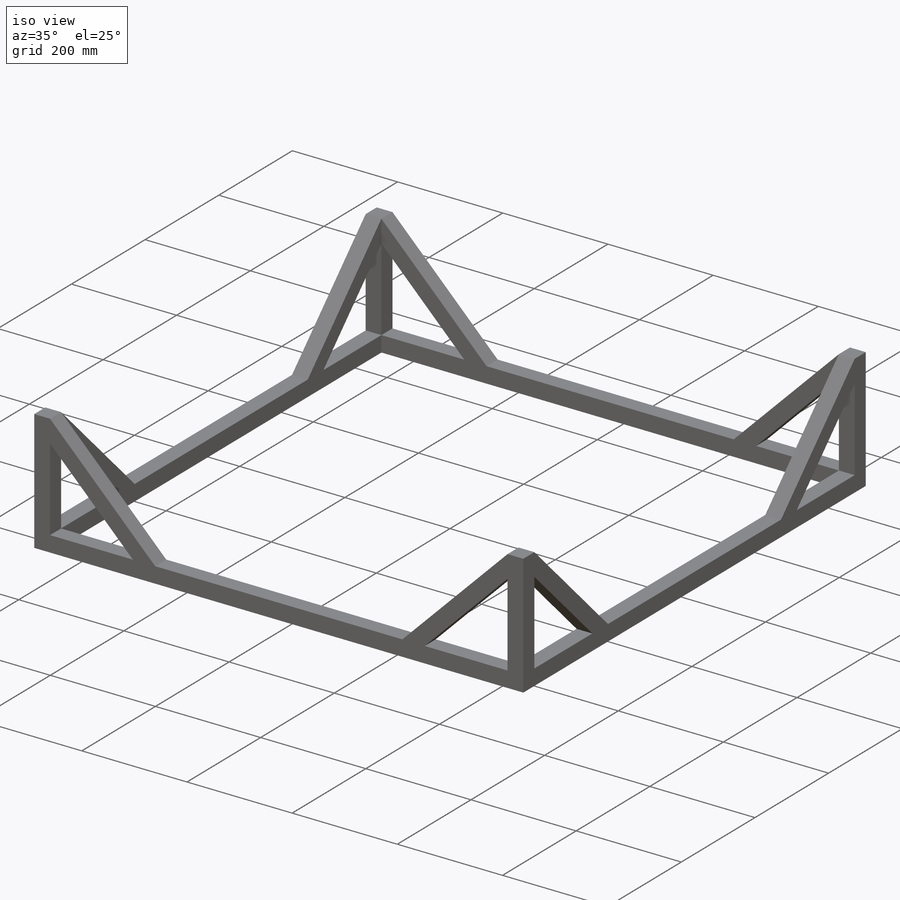
[diagram: iso view]
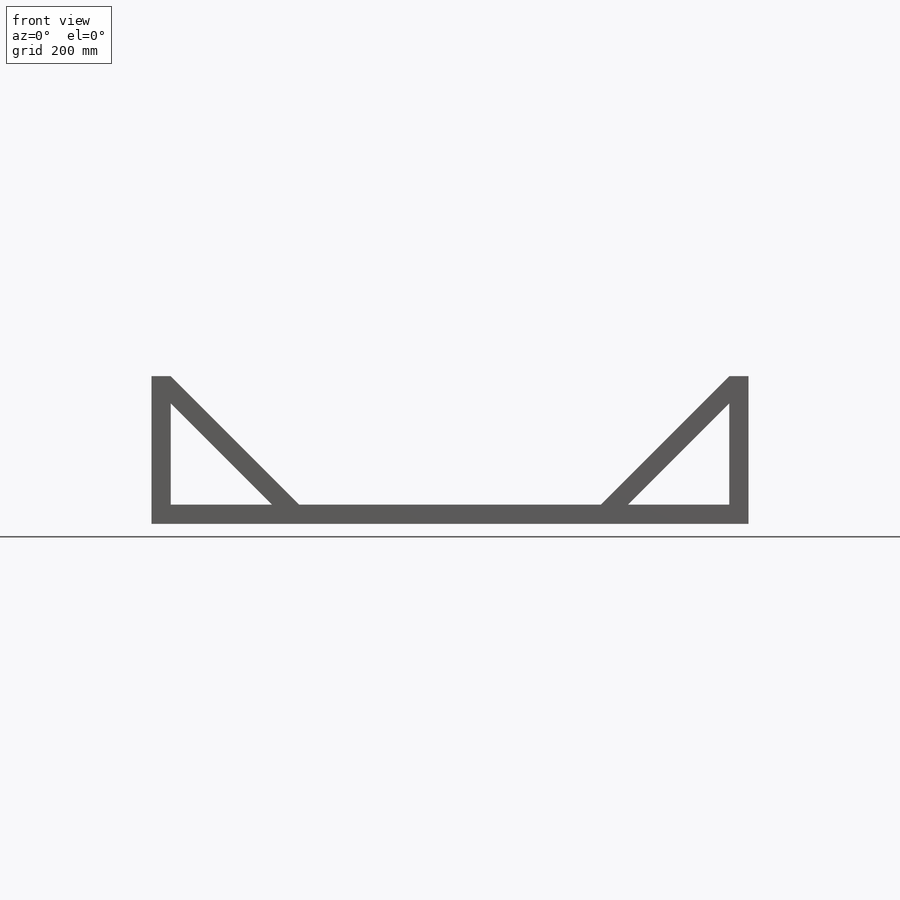
[diagram: front view]
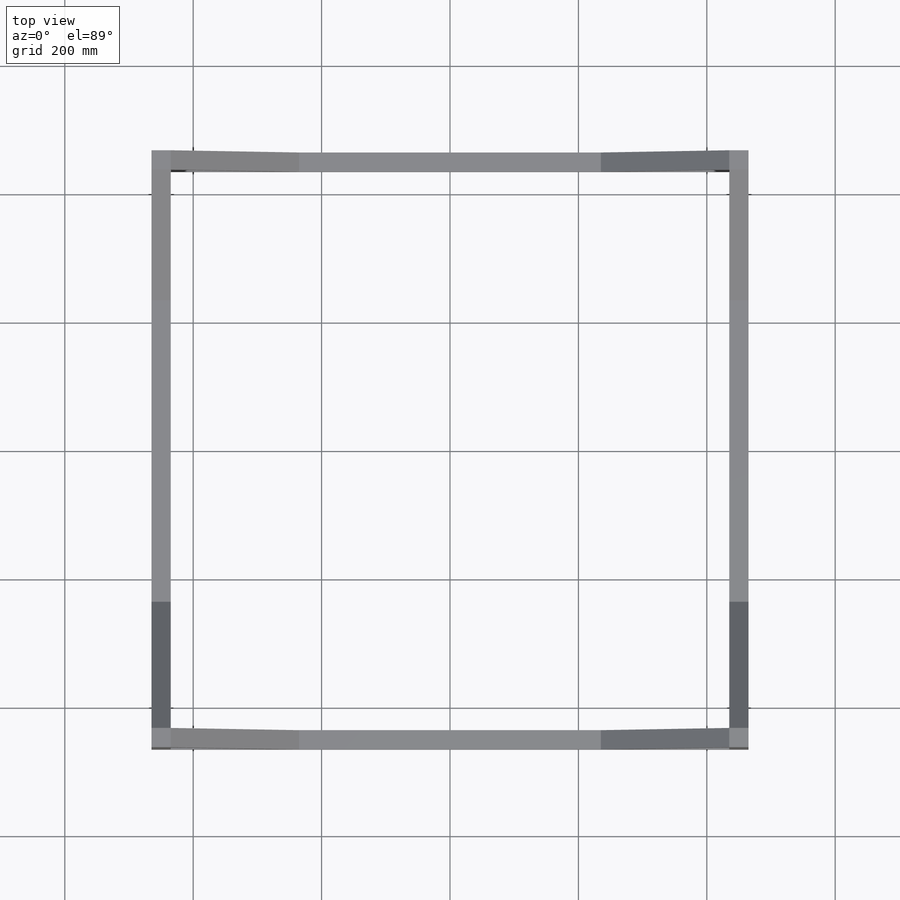
[diagram: top view]
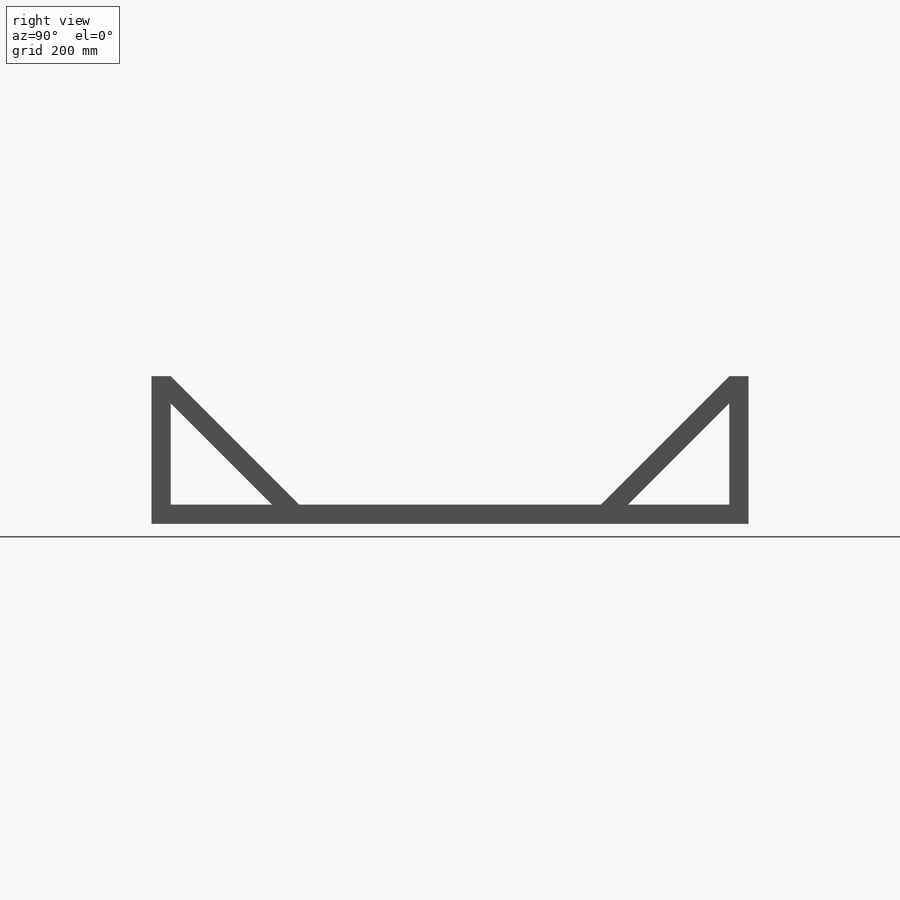
[diagram: right view]
SOLIDWORKS PART (.sldprt)
format: sldprt  version: not decoded by parser v0  size: 333,824 bytes
history: native  units: mm
features: sketch x10, extrude x10, material x1 (+11 scaffold rows collapsed)
feature tree (32):
  scaffold x11  (default folders/planes/origin — collapsed)
  material  "Material <not specified>"
  sketch  "Sketch1"  dims[D1=930.0mm D2=930.0mm D3=30.0mm]
  extrude  "Boss-Extrude1"  Depth=30mm
  sketch  "Sketch2"
  extrude  "Boss-Extrude2"  Depth=200mm
  sketch  "Sketch4"  dims[c1.D1=200.0mm c1.D2=30.0mm c1.D3=~257.030406mm c2.D1=200.0mm]
  extrude  "Boss-Extrude3"  Depth=30mm
  sketch  "Sketch5"  dims[D1=200.0mm D2=30.0mm]
  extrude  "Boss-Extrude4"  Depth=30mm
  sketch  "Sketch6"  dims[D1=200.0mm D2=30.0mm]
  extrude  "Boss-Extrude5"  Depth=30mm
  sketch  "Sketch7"  dims[D1=30.0mm D2=200.0mm]
  extrude  "Boss-Extrude6"  Depth=30mm
  sketch  "Sketch8"  dims[D1=30.0mm D2=200.0mm]
  extrude  "Boss-Extrude7"  Depth=30mm
  sketch  "Sketch9"  dims[D1=30.0mm D2=200.0mm]
  extrude  "Boss-Extrude8"  Depth=30mm
  sketch  "Sketch10"  dims[D1=30.0mm D2=200.0mm]
  extrude  "Boss-Extrude9"  Depth=30mm
  sketch  "Sketch11"  dims[D1=30.0mm D2=200.0mm]
  extrude  "Boss-Extrude10"  Depth=30mm
decode coverage: 19 of 20 modeling features carry decoded parameters
note: ~ marks probable driven/reference dimensions
note: suppression state not decoded; provenance and decode notes live in map.json
